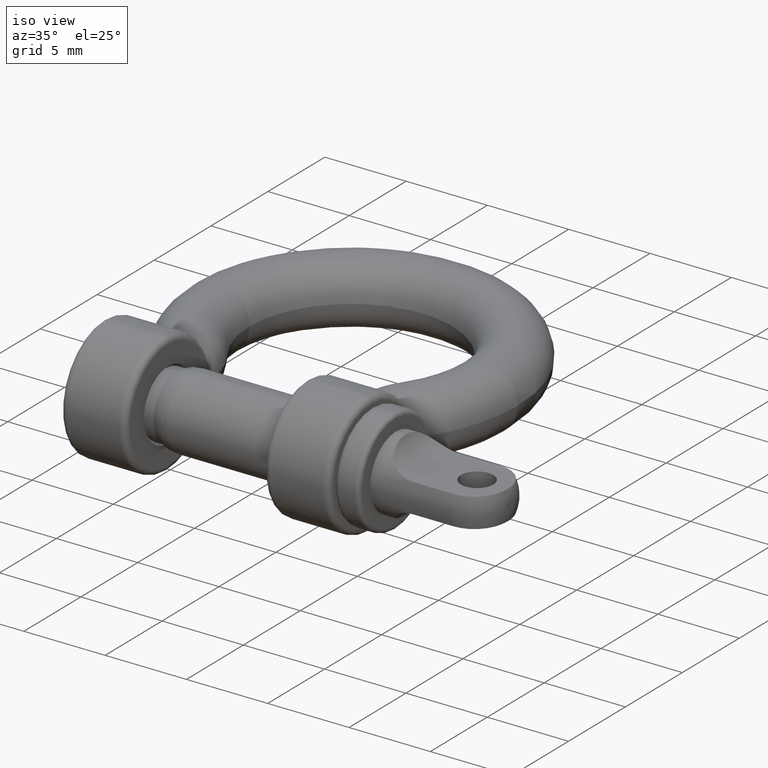
[diagram: clean part render]
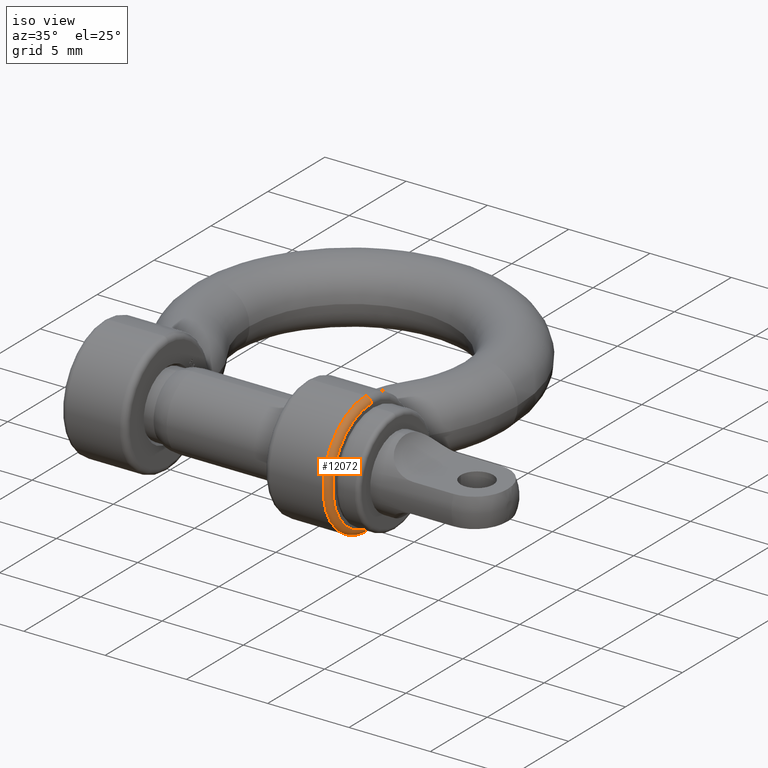
[diagram: same view with one face highlighted and labeled with its STEP entity id]
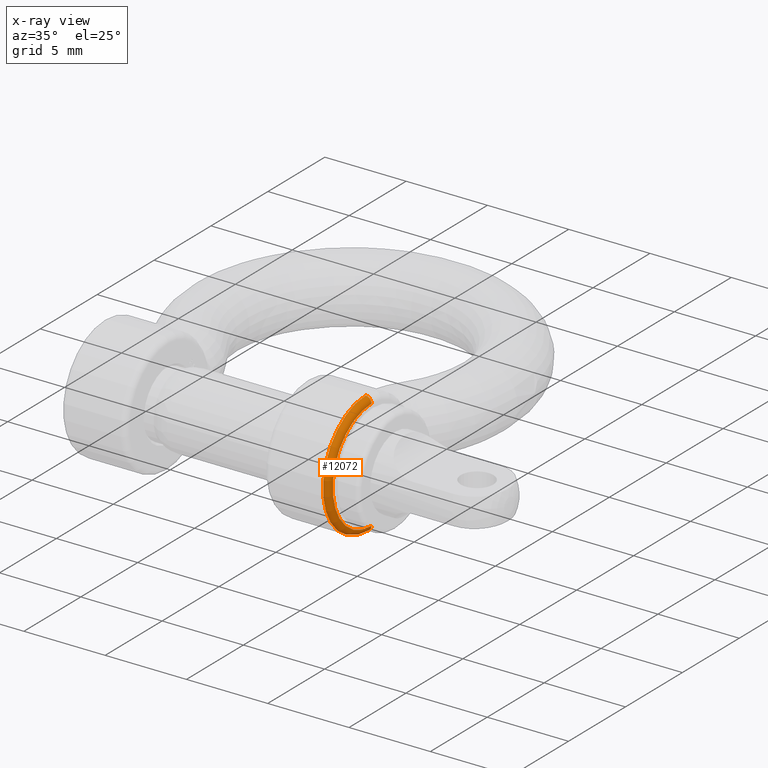
[diagram: x-ray of the same camera — body ghosted, the highlighted face saturated]
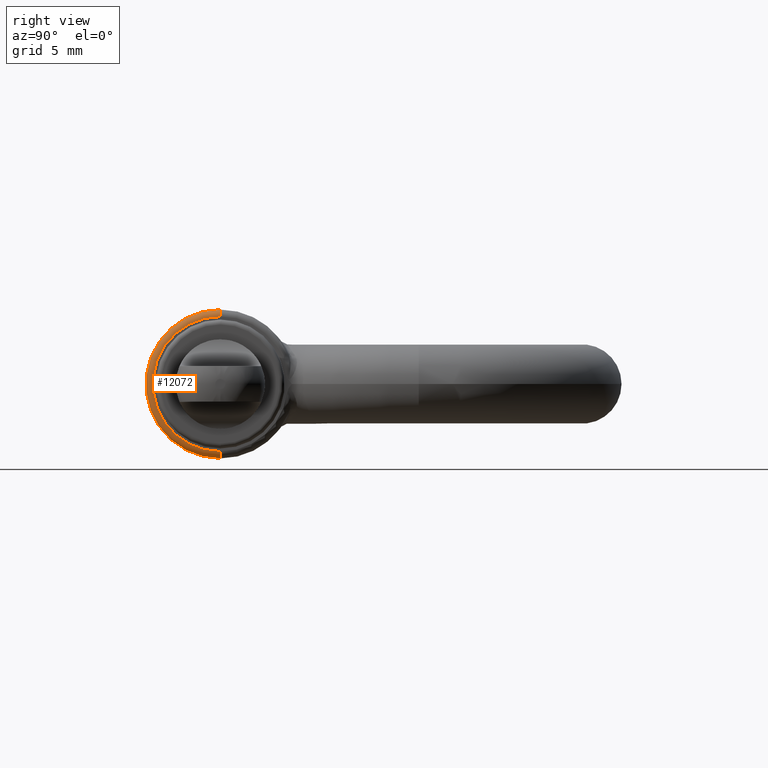
[diagram: same view with one face highlighted and labeled with its STEP entity id]
A machine part, iso view. The second image highlights one B-rep face of the part: STEP entity #12072.
The next image is the same camera in x-ray: the body ghosted, the highlighted face saturated — about 0% of this face is hidden behind the body in this view.
A second angle (right view) of the same face is appended — the face is thin or edge-on in the first view.
In plain terms, the highlighted toroidal blend (fillet) surface has major radius 3.4 mm and minor (blend) radius 0.35 mm.
Its self-contained STEP definition (entity closure, byte-faithful):
#498 = DIRECTION ( 'NONE',  ( 0.0000000000000000000, 0.0000000000000000000, -1.000000000000000000 ) ) ;
#599 = CARTESIAN_POINT ( 'NONE',  ( 8.250000000000000000, 3.750000000000000000, 0.0000000000000000000 ) ) ;
#1626 = CIRCLE ( 'NONE', #2930, 0.3500000000000000300 ) ;
#2000 = CARTESIAN_POINT ( 'NONE',  ( 7.900000000000000400, 3.750000000000000000, 0.0000000000000000000 ) ) ;
#2070 = ORIENTED_EDGE ( 'NONE', *, *, #14806, .T. ) ;
#2190 = CARTESIAN_POINT ( 'NONE',  ( 7.900000000000000400, 3.750000000000000000, 0.0000000000000000000 ) ) ;
#2852 = EDGE_CURVE ( 'NONE', #5821, #5306, #4726, .T. ) ;
#2894 = ORIENTED_EDGE ( 'NONE', *, *, #13596, .F. ) ;
#2930 = AXIS2_PLACEMENT_3D ( 'NONE', #15046, #6188, #3820 ) ;
#3230 = ORIENTED_EDGE ( 'NONE', *, *, #8692, .F. ) ;
#3820 = DIRECTION ( 'NONE',  ( 0.0000000000000000000, 0.0000000000000000000, -1.000000000000000000 ) ) ;
#3982 = AXIS2_PLACEMENT_3D ( 'NONE', #2190, #14684, #14736 ) ;
#4034 = CARTESIAN_POINT ( 'NONE',  ( 7.900000000000000400, 3.750000000000000400, 3.399999999999999900 ) ) ;
#4089 = DIRECTION ( 'NONE',  ( 0.0000000000000000000, 0.0000000000000000000, 1.000000000000000000 ) ) ;
#4726 = CIRCLE ( 'NONE', #11731, 0.3500000000000000300 ) ;
#4843 = FACE_OUTER_BOUND ( 'NONE', #13889, .T. ) ;
#5306 = VERTEX_POINT ( 'NONE', #6839 ) ;
#5821 = VERTEX_POINT ( 'NONE', #10831 ) ;
#5826 = CARTESIAN_POINT ( 'NONE',  ( 7.900000000000000400, 3.750000000000000000, -3.750000000000000000 ) ) ;
#6188 = DIRECTION ( 'NONE',  ( 0.0000000000000000000, -1.000000000000000000, 0.0000000000000000000 ) ) ;
#6839 = CARTESIAN_POINT ( 'NONE',  ( 8.250000000000000000, 3.750000000000000400, 3.399999999999999900 ) ) ;
#8692 = EDGE_CURVE ( 'NONE', #5306, #12512, #15858, .T. ) ;
#9586 = CIRCLE ( 'NONE', #3982, 3.750000000000000000 ) ;
#9619 = DIRECTION ( 'NONE',  ( 0.0000000000000000000, 0.0000000000000000000, -1.000000000000000000 ) ) ;
#9635 = AXIS2_PLACEMENT_3D ( 'NONE', #599, #10601, #498 ) ;
#10482 = VERTEX_POINT ( 'NONE', #5826 ) ;
#10601 = DIRECTION ( 'NONE',  ( 1.000000000000000000, 0.0000000000000000000, 0.0000000000000000000 ) ) ;
#10799 = AXIS2_PLACEMENT_3D ( 'NONE', #2000, #12019, #9619 ) ;
#10831 = CARTESIAN_POINT ( 'NONE',  ( 7.900000000000000400, 3.750000000000000400, 3.750000000000000000 ) ) ;
#11731 = AXIS2_PLACEMENT_3D ( 'NONE', #4034, #11858, #4089 ) ;
#11858 = DIRECTION ( 'NONE',  ( 0.0000000000000000000, 1.000000000000000000, -1.224646799147353200E-016 ) ) ;
#12019 = DIRECTION ( 'NONE',  ( 1.000000000000000000, 0.0000000000000000000, 0.0000000000000000000 ) ) ;
#12072 = ADVANCED_FACE ( 'NONE', ( #4843 ), #12573, .T. ) ;
#12512 = VERTEX_POINT ( 'NONE', #14851 ) ;
#12573 = TOROIDAL_SURFACE ( 'NONE', #10799, 3.399999999999999900, 0.3499999999999999800 ) ;
#13086 = ORIENTED_EDGE ( 'NONE', *, *, #2852, .F. ) ;
#13596 = EDGE_CURVE ( 'NONE', #10482, #5821, #9586, .T. ) ;
#13889 = EDGE_LOOP ( 'NONE', ( #13086, #2894, #2070, #3230 ) ) ;
#14684 = DIRECTION ( 'NONE',  ( -1.000000000000000000, -0.0000000000000000000, -0.0000000000000000000 ) ) ;
#14736 = DIRECTION ( 'NONE',  ( 0.0000000000000000000, 0.0000000000000000000, -1.000000000000000000 ) ) ;
#14806 = EDGE_CURVE ( 'NONE', #10482, #12512, #1626, .T. ) ;
#14851 = CARTESIAN_POINT ( 'NONE',  ( 8.250000000000000000, 3.750000000000000000, -3.400000000000000400 ) ) ;
#15046 = CARTESIAN_POINT ( 'NONE',  ( 7.900000000000000400, 3.750000000000000000, -3.399999999999999900 ) ) ;
#15858 = CIRCLE ( 'NONE', #9635, 3.399999999999999900 ) ;